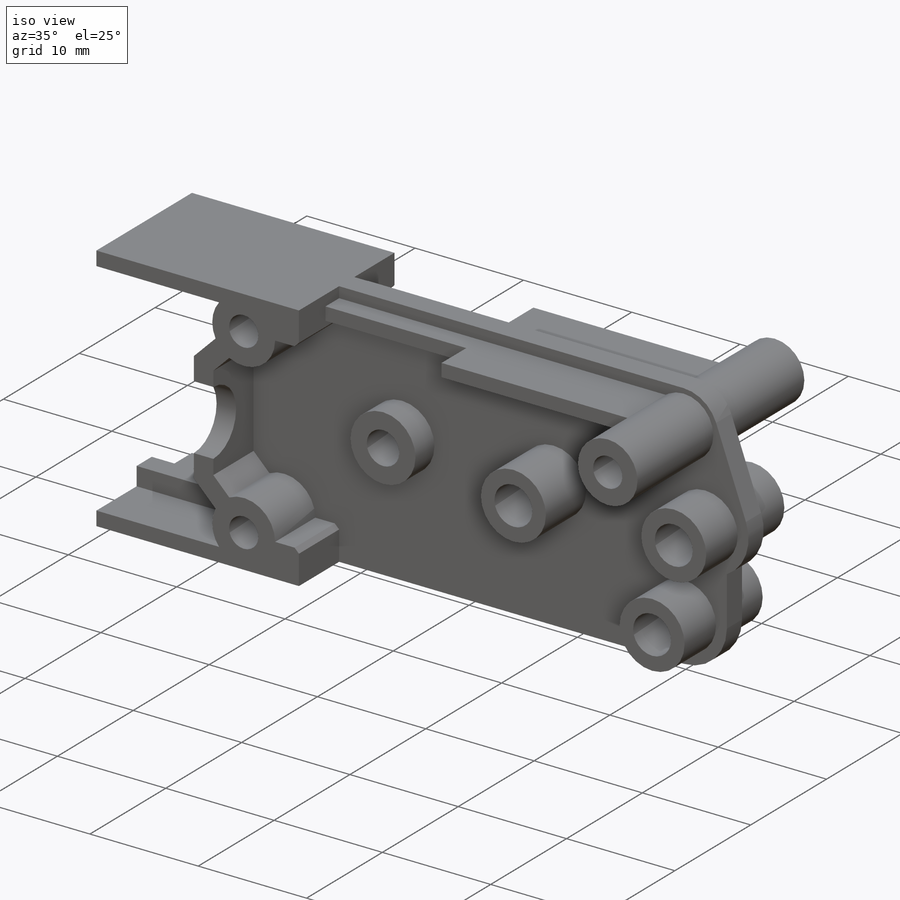
[diagram: iso view]
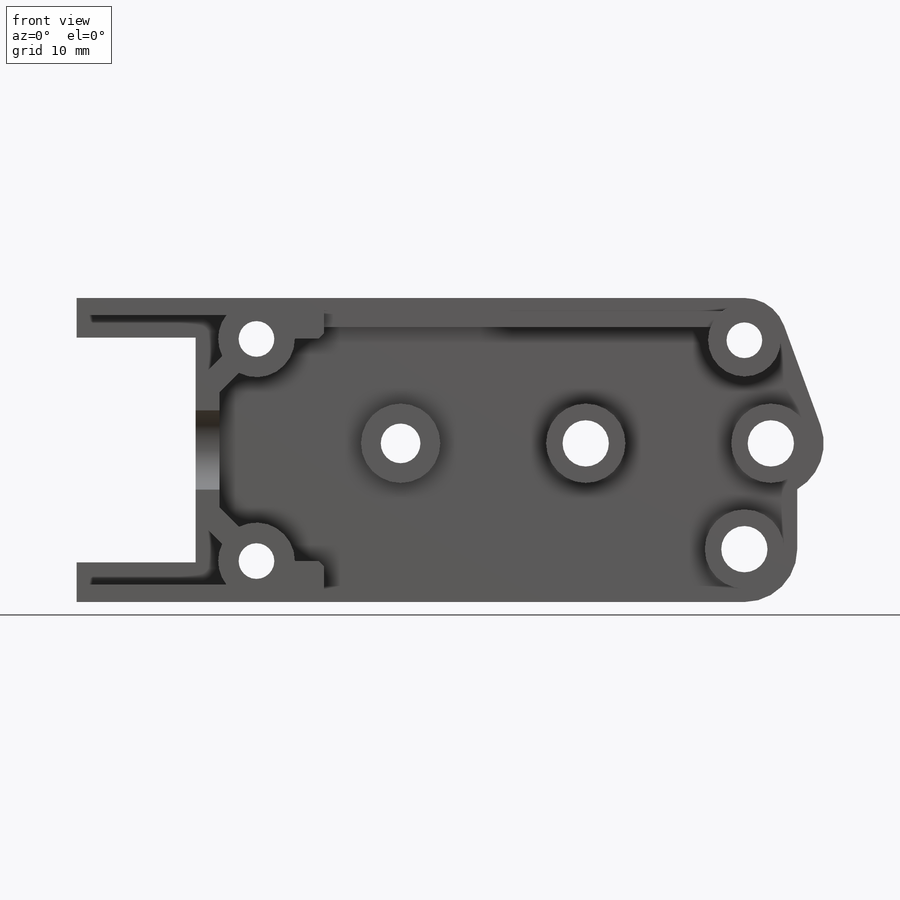
[diagram: front view]
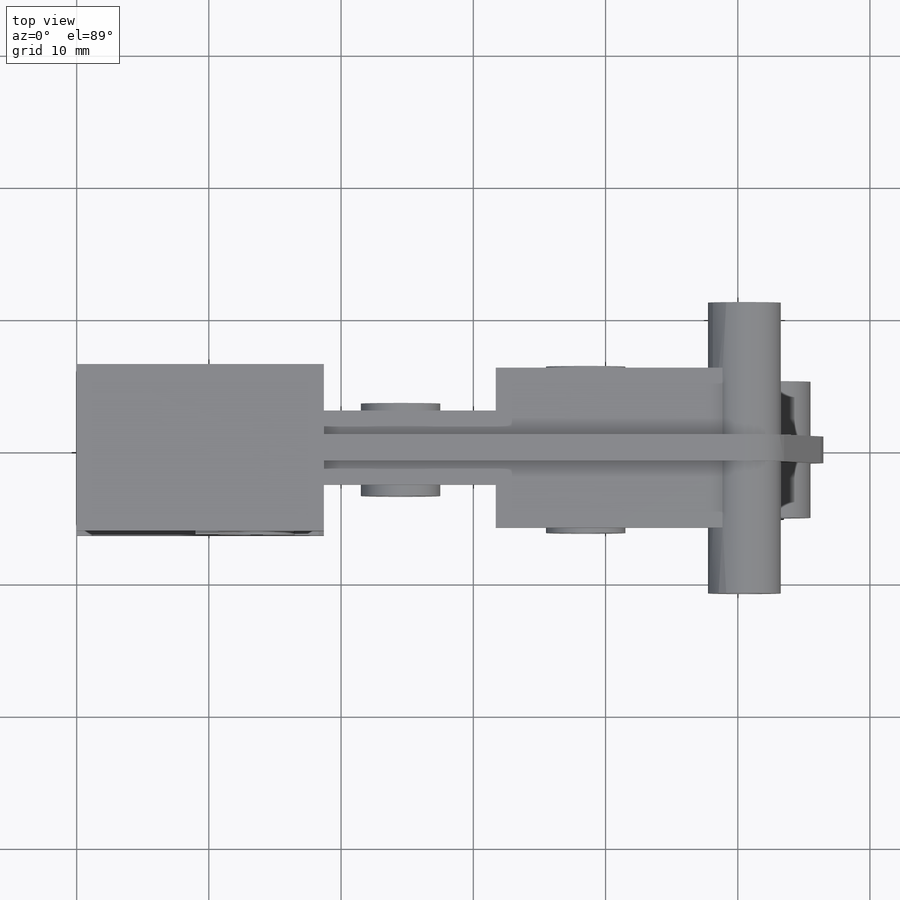
[diagram: top view]
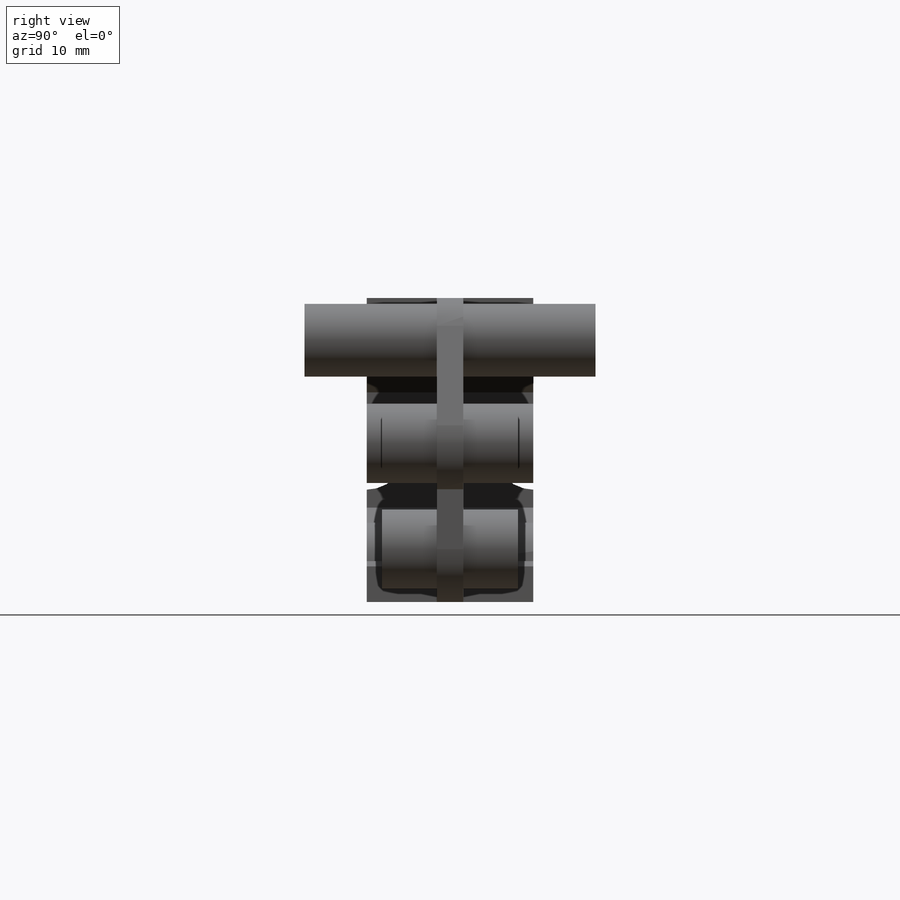
[diagram: right view]
SOLIDWORKS PART (.sldprt)
format: sldprt  version: not decoded by parser v0  size: 429,568 bytes
history: native  units: mm
features: sketch x9, extrude x7, cut_extrude x2, material x1, plane x1, chamfer x1 (+15 scaffold rows collapsed)
feature tree (36):
  scaffold x15  (default folders/planes/origin — collapsed)
  material  "Material <not specified>"
  sketch  "Sketch2"  dims[c1.D3=2.7mm c1.D11=3.5mm c1.D12=3.5mm c1.D13=3.0mm c1.D14=3.5mm c1.D16=3.5mm c1.D17=2.7mm c1.D18=4.0mm c1.D19=3.2mm c1.D1=9.0mm c1.D2=3.0mm c1.D4=3.1mm c1.D5=13.6mm c1.D6=23.0mm c1.D7=10.9mm c1.D8=14.0mm c1.D9=12.0mm c1.D10=2.0mm c1.D15=8.0mm c2.D16=7.8mm c2.D20=12.0mm c2.D21=3.1mm]
  extrude  "Boss-Extrude1"  Depth=2mm
  sketch  "Sketch3"  dims[D1=6.0mm D2=6.0mm D3=6.0mm]
  extrude  "Boss-Extrude2"  Depth=10.3mm
  sketch  "Sketch4"  dims[D1=6.0mm]
  extrude  "Boss-Extrude3"  Depth=12.6mm
  sketch  "Sketch5"  dims[D1=6.0mm]
  extrude  "Boss-Extrude4"  Depth=7mm
  sketch  "Sketch6"  dims[D1=5.5mm]
  extrude  "Boss-Extrude5"  Depth=22mm
  sketch  "Sketch7"  dims[c1.D1=2.9mm c1.D2=1.3mm c1.D3=1.8mm c1.D4=18.7mm c1.D5=1.8mm c1.D6=~2.170828mm c2.D6=~28.198312deg c3.D6=10.2mm c3.D7=~2.779831mm c4.D7=45.0deg]
  extrude  "Boss-Extrude6"  Depth=12.6mm
  plane  "Plane1"  Offset=1mm
  sketch  "Sketch8"  dims[D1=13.0mm D2=12.1mm D3=5.6mm]
  extrude  "Boss-Extrude7"  Depth=1.2mm
  sketch  "Sketch9"  dims[D1=0.0mm]
  cut_extrude  "Cut-Extrude1"  [1 undecoded]
  sketch  "Sketch10"  dims[D1=3.0mm]
  cut_extrude  "Cut-Extrude2"  [1 undecoded]
  chamfer  "Chamfer2"  Distance=0.4mm Angle=45deg
decode coverage: 17 of 19 modeling features carry decoded parameters
note: ~ marks probable driven/reference dimensions
note: 2 parameter values undecoded
note: suppression state not decoded; provenance and decode notes live in map.json
